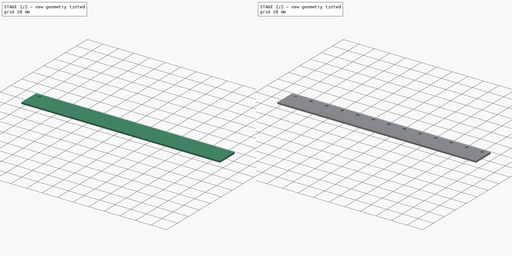
[diagram: build sequence overview — one tinted view per stage of 2, left to right]
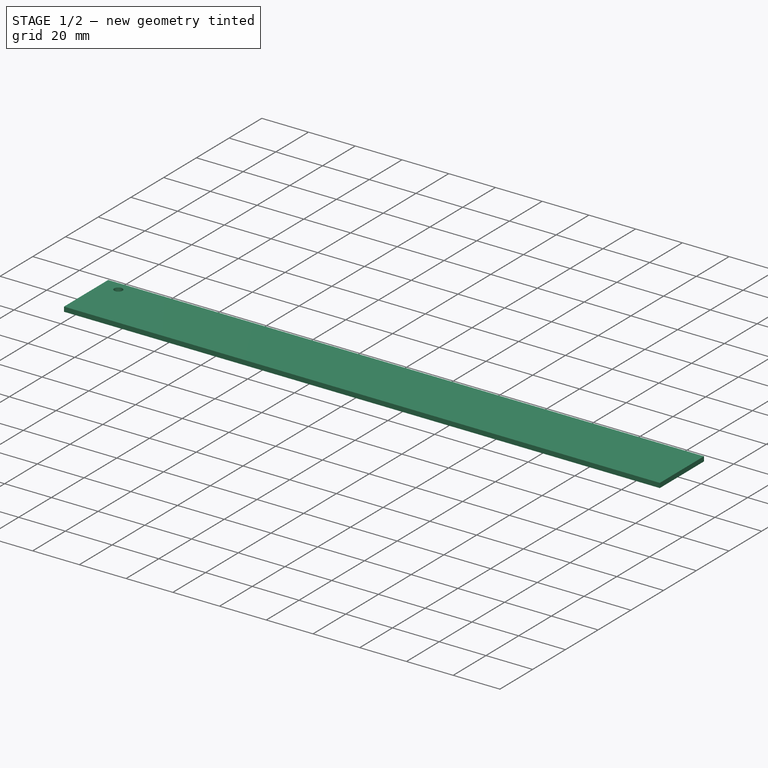
[diagram: stage 1 of 2 — iso view after this stage's code; geometry added in this stage tinted green]
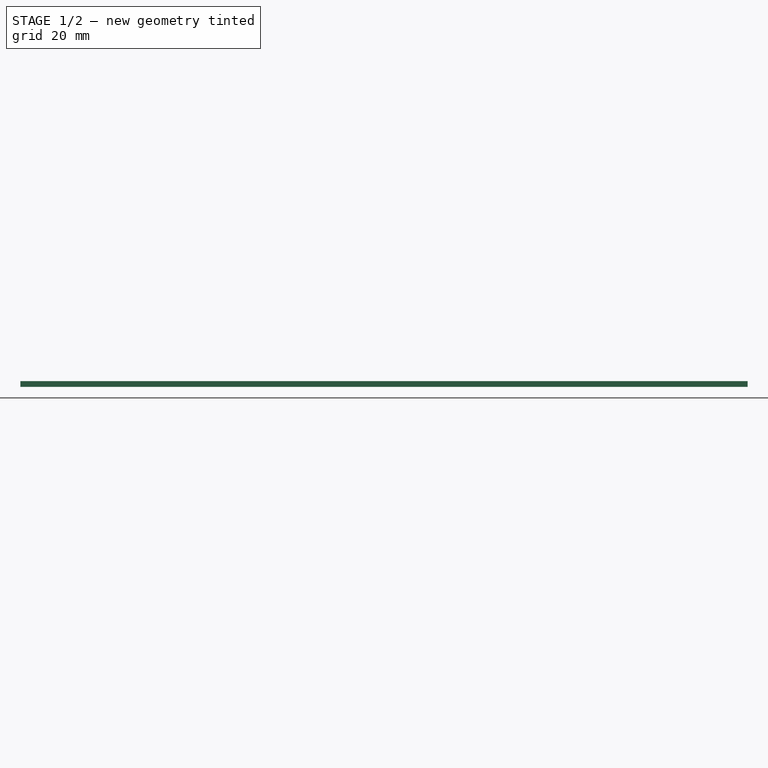
[diagram: stage 1 of 2 — front view after this stage's code; geometry added in this stage tinted green]
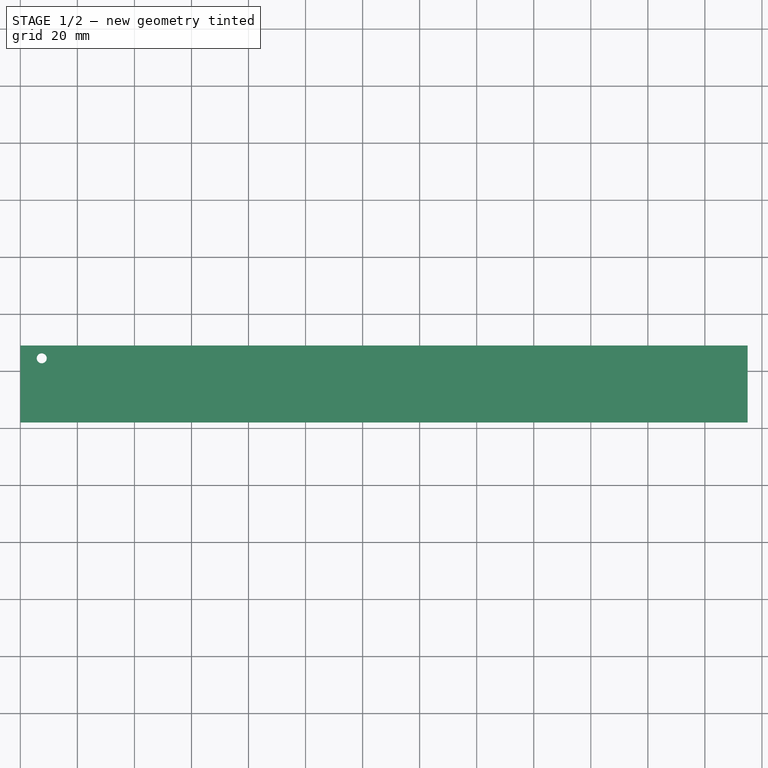
[diagram: stage 1 of 2 — top view after this stage's code; geometry added in this stage tinted green]
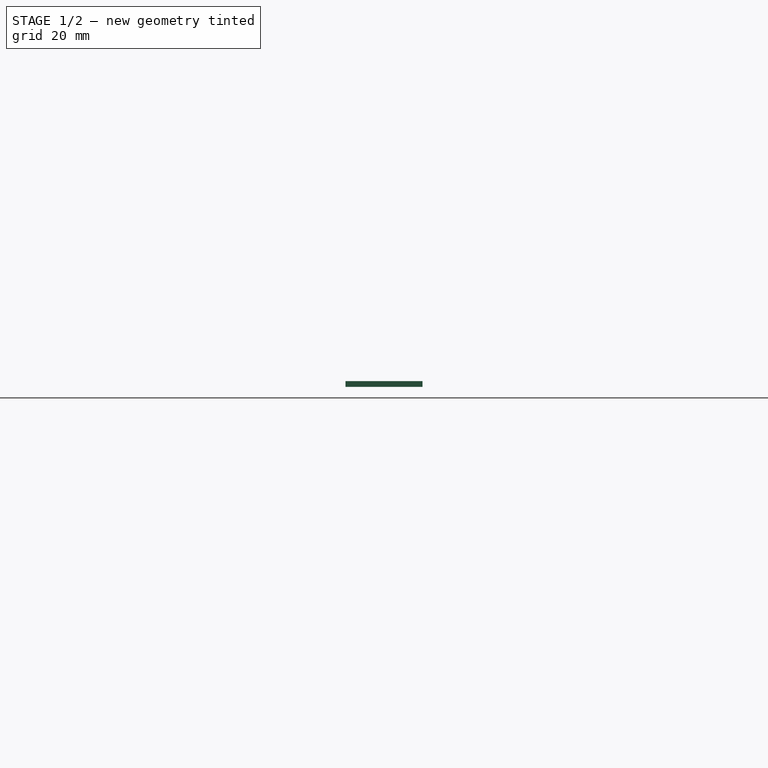
[diagram: stage 1 of 2 — right view after this stage's code; geometry added in this stage tinted green]
FCSTD DOCUMENT  (FreeCAD 0.21R33668 +26 (Git))
Label: PCB_Linear_Potentiometer
License: All rights reserved
LicenseURL: http://en.wikipedia.org/wiki/All_rights_reserved
objects: Sketcher::SketchObject×3, PartDesign::SubShapeBinder×2, PartDesign::Pad×2, PartDesign::Pocket×1, PartDesign::LinearPattern×1, PartDesign::Body×1
note: 13 computed .brp shape members not serialized (recipe doc carries the construction recipe); baked Part::Feature solids carry a one-line shape summary decoded from their .brp
EXTERNAL_REF file=MG/mgn9c_13.FCStd obj=Body
EXTERNAL_REF file=MG/mgn9c_slide.FCStd obj=Body001
EXTERNAL_REF file=MG/Datasheet.FCStd obj=Spreadsheet
EXTERNAL_REF file=NormalConnector.FCStd obj=Sketch
EXTERNAL_REF file=Base.FCStd obj=Sketch001
EXTERNAL_REF file=Base.FCStd obj=Sketch

FEATURE [PartDesign::SubShapeBinder] Binder  label="Rail"
  BindCopyOnChange = 0
  BindMode = 0
  ClaimChildren = false
  Context = -> Body [Binder.]
  Fuse = false
  MakeFace = true
  OffsetFill = false
  OffsetIntersection = false
  OffsetJoinType = 0
  OffsetOpenResult = false
  PartialLoad = false
  Relative = true
  Support = -> [<external MG/mgn9c_13.FCStd>#Body]
  _Version = 2
FEATURE [PartDesign::SubShapeBinder] Binder001  label="Slide"
  BindCopyOnChange = 0
  BindMode = 0
  ClaimChildren = false
  Context = -> Body [Binder001.]
  Fuse = false
  MakeFace = true
  OffsetFill = false
  OffsetIntersection = false
  OffsetJoinType = 0
  OffsetOpenResult = false
  PartialLoad = false
  Placement = pos=(0,-5.5,0) rot=(0,0,1;0rad)
  Relative = true
  Support = -> [<external MG/mgn9c_slide.FCStd>#Body001]
  _Version = 2
FEATURE [Sketcher::SketchObject] Sketch
  ExternalGeometry = -> [Binder]
  FullyConstrained = true
  MapMode = 5
  Support = -> [XY_Plane]
  expr: Constraints[21] = <<Datasheet>>#<<mgn9c>>.Dim_W
  expr: Constraints[22] = NormalConnector#Sketch.Constraints.PCB_Edge_Distance_From_Slide_Side
  sketch-geometry (11):
    g0: LineSegment StartX=0 StartY=9 StartZ=0 EndX=255 EndY=9 EndZ=0
    g1: LineSegment StartX=255 StartY=9 StartZ=0 EndX=255 EndY=-17.9944 EndZ=0
    g2: LineSegment StartX=255 StartY=-17.9944 StartZ=0 EndX=0 EndY=-17.9944 EndZ=0
    g3: LineSegment StartX=0 StartY=-17.9944 StartZ=0 EndX=0 EndY=9 EndZ=0
    g4: LineSegment StartX=7.5 StartY=4.5 StartZ=0 EndX=27.5 EndY=4.5 EndZ=0
    g5: LineSegment StartX=7.5 StartY=14.5 StartZ=0 EndX=27.5 EndY=14.5 EndZ=0
    g6: LineSegment StartX=27.5 StartY=14.5 StartZ=0 EndX=27.5 EndY=-5.5 EndZ=0
    g7: LineSegment StartX=27.5 StartY=-5.5 StartZ=0 EndX=7.5 EndY=-5.5 EndZ=0
    g8: LineSegment StartX=7.5 StartY=-5.5 StartZ=0 EndX=7.5 EndY=14.5 EndZ=0
    g9: Circle CenterX=7.5 CenterY=4.5 CenterZ=0 NormalX=0 NormalY=0 NormalZ=1 AngleXU=0 Radius=1.75
    g10: GeomPoint X=9.25 Y=4.5 Z=0
  constraints (29):
    c: Coincident(g0,g1)
    c: Coincident(g1,g2)
    c: Coincident(g2,g3)
    c: Coincident(g3,g0)
    c: Horizontal(g2)
    c: Vertical(g1)
    c: Vertical(g3)
    c: Coincident(g0,g-3)
    c: Coincident(g0,g-4)
    c: Coincident(g4,g-5)
    c: Coincident(g4,g-6)
    c: Coincident(g5,g6)
    c: Coincident(g6,g7)
    c: Coincident(g7,g8)
    c: Coincident(g8,g5)
    c: Horizontal(g5)
    c: Horizontal(g7)
    c: Vertical(g6)
    c: PointOnObject(g4,g6)
    c: PointOnObject(g4,g8)
    c: Symmetric(g5,g7,g4)
    c: DistanceY(g8,g8) = 20
    c: DistanceY(g2,g7) = 12.4944
    c: Coincident(g9,g4)
    c: PointOnObject(g10,g4)
    c: PointOnObject(g10,g-5)
    c: PointOnObject(g10,g9)
    c: DistanceX(g0,g0) = 255  'Length'
    c: DistanceY(g1,g1) = 26.9944
FEATURE [PartDesign::Pad] Pad
  Direction = (0,0,1)
  Length = 2
  Length2 = 10
  Profile = -> Sketch
  ReferenceAxis = -> Sketch [N_Axis]
  Type = 0
  expr: Length = <<Base>>#<<Sketch001>>.Constraints.PCB_Thickness
FEATURE [Sketcher::SketchObject] Sketch001
  ExternalGeometry = -> [Pad]
  FullyConstrained = true
  MapMode = 5
  Placement = pos=(0,0,2) rot=(0,0,1;0rad)
  Support = -> [Pad]
  sketch-geometry (2):
    g0: Circle CenterX=7.5 CenterY=4.5 CenterZ=0 NormalX=0 NormalY=0 NormalZ=1 AngleXU=0 Radius=1.75
    g1: GeomPoint X=9.25 Y=4.5 Z=0
  constraints (4):
    c: PointOnObject(g1,g0)
    c: PointOnObject(g1,g-3)
    c: Coincident(g0,g-3)
    c: DistanceY(g1,g0) = 0
FEATURE [PartDesign::Pocket] Pocket
  BaseFeature = -> Pad
  Direction = (0,0,-1)
  Length = 5
  Length2 = 5
  Profile = -> Sketch001
  ReferenceAxis = -> Sketch001 [N_Axis]
  Type = 1
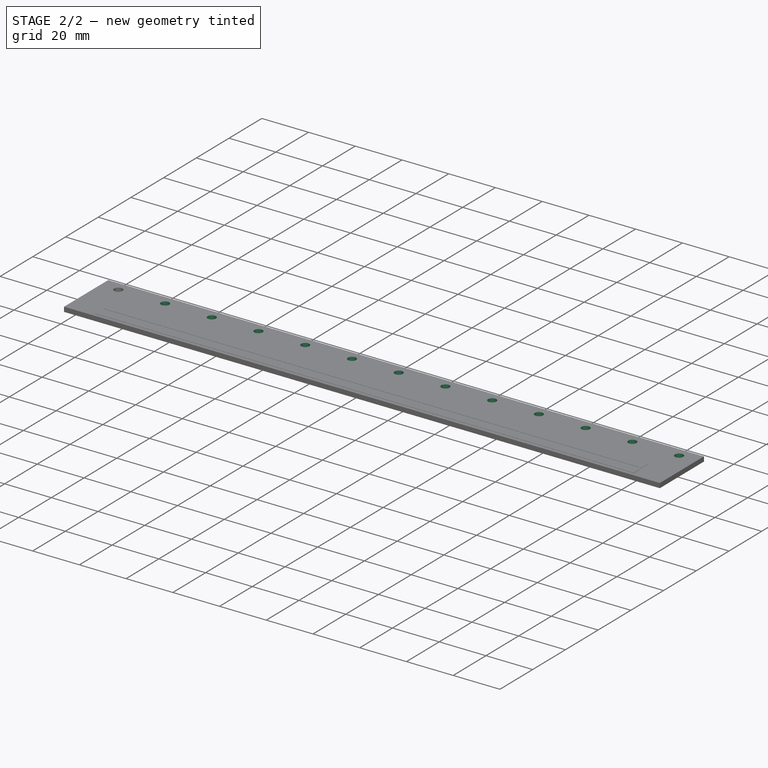
[diagram: stage 2 of 2 — iso view after this stage's code; geometry added in this stage tinted green]
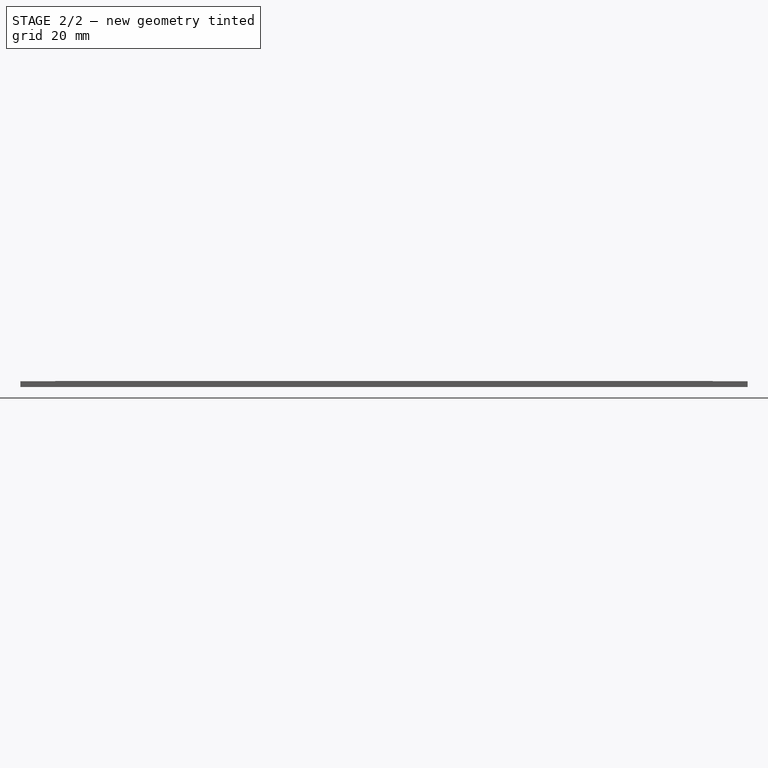
[diagram: stage 2 of 2 — front view after this stage's code; geometry added in this stage tinted green]
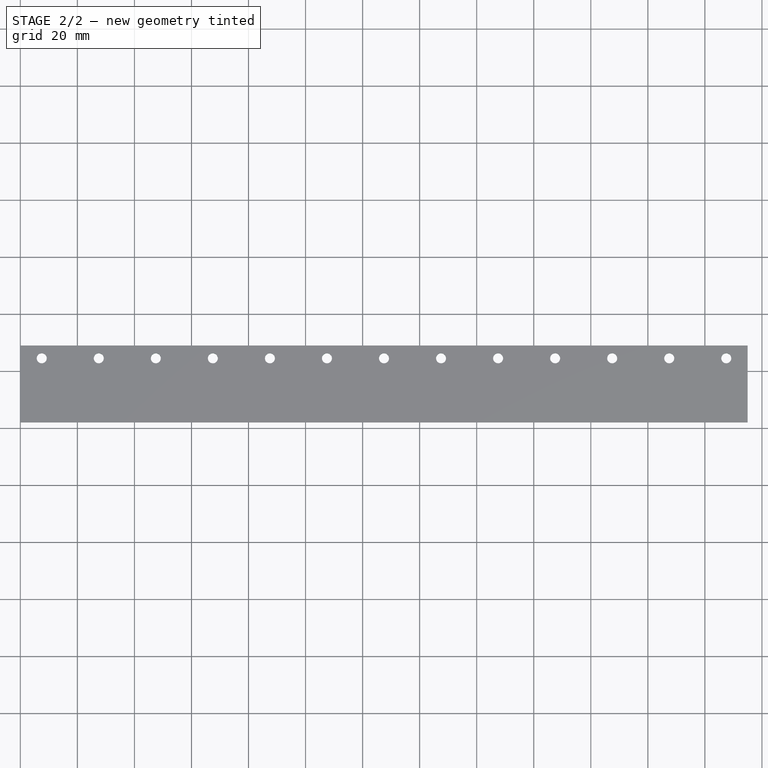
[diagram: stage 2 of 2 — top view after this stage's code; geometry added in this stage tinted green]
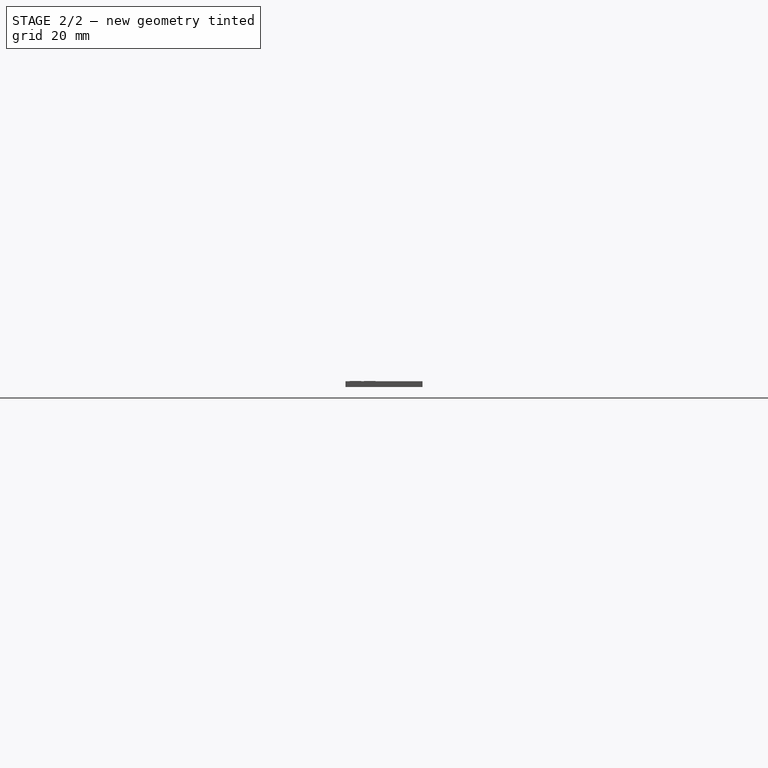
[diagram: stage 2 of 2 — right view after this stage's code; geometry added in this stage tinted green]
FEATURE [PartDesign::LinearPattern] LinearPattern
  BaseFeature = -> Pocket
  Direction = -> Sketch001 [H_Axis]
  Length = 240
  Occurrences = 13
  Originals = -> [Pocket]
  expr: Length = <<Sketch>>.Constraints.Length - <<Datasheet>>#<<mgn9c>>.Dim_E * 2
FEATURE [Sketcher::SketchObject] Sketch002
  ExternalGeometry = -> [LinearPattern]
  FullyConstrained = true
  MapMode = 5
  Placement = pos=(0,0,2) rot=(0,0,1;0rad)
  Support = -> [LinearPattern]
  expr: Constraints[18] = <<Datasheet>>#<<mgn9c>>.Dim_W / 2
  expr: Constraints[21] = NormalConnector#Sketch.Constraints.Connector_Close_Distance
  expr: Constraints[22] = NormalConnector#Sketch.Constraints.Connector_Far_Distance
  expr: Constraints[24] = .Constraints.Resistor_Width
  expr: Constraints[26] = <<Base>>#<<Sketch>>.Constraints.RailOverlap
  sketch-geometry (15):
    g0: LineSegment StartX=12.25 StartY=-7.4986 StartZ=0 EndX=242.75 EndY=-7.4986 EndZ=0
    g1: LineSegment StartX=242.75 StartY=-7.4986 StartZ=0 EndX=242.75 EndY=-11.4986 EndZ=0
    g2: LineSegment StartX=242.75 StartY=-11.4986 StartZ=0 EndX=12.25 EndY=-11.4986 EndZ=0
    g3: LineSegment StartX=12.25 StartY=-11.4986 StartZ=0 EndX=12.25 EndY=-7.4986 EndZ=0
    g4: LineSegment StartX=12.25 StartY=-12.4958 StartZ=0 EndX=242.75 EndY=-12.4958 EndZ=0
    g5: LineSegment StartX=242.75 StartY=-12.4958 StartZ=0 EndX=242.75 EndY=-16.4958 EndZ=0
    g6: LineSegment StartX=242.75 StartY=-16.4958 StartZ=0 EndX=12.25 EndY=-16.4958 EndZ=0
    g7: LineSegment StartX=12.25 StartY=-16.4958 StartZ=0 EndX=12.25 EndY=-12.4958 EndZ=0
    g8: GeomPoint X=12.25 Y=-9.4986 Z=0
    g9: GeomPoint X=12.25 Y=-14.4958 Z=0
    g10: GeomPoint X=0 Y=4.5 Z=0
    g11: GeomPoint X=0 Y=-5.5 Z=0
    g12: GeomPoint X=12.25 Y=9 Z=0
    g13: GeomPoint X=242.75 Y=9 Z=0
    g14: GeomPoint X=127.5 Y=9 Z=0
  constraints (33):
    c: Coincident(g0,g1)
    c: Coincident(g1,g2)
    c: Coincident(g2,g3)
    c: Coincident(g3,g0)
    c: Horizontal(g0)
    c: Horizontal(g2)
    c: Vertical(g1)
    c: Vertical(g3)
    c: Coincident(g4,g5)
    c: Coincident(g5,g6)
    c: Coincident(g6,g7)
    c: Coincident(g7,g4)
    c: Horizontal(g4)
    c: Horizontal(g6)
    c: Vertical(g5)
    c: Vertical(g7)
    c: Symmetric(g-4,g-1,g10)
    c: PointOnObject(g11,g-4)
    c: DistanceY(g11,g10) = 10
    c: Symmetric(g2,g0,g8)
    c: Symmetric(g4,g6,g9)
    c: DistanceY(g8,g11) = 3.9986
    c: DistanceY(g9,g11) = 8.9958
    c: DistanceY(g3,g3) = 4  'Resistor_Width'
    c: DistanceY(g7,g7) = 4
    c: PointOnObject(g12,g-7)
    c: DistanceX(g-7,g12) = 12.25
    c: Vertical(g8,g9)
    c: Vertical(g12,g8)
    c: Symmetric(g13,g12,g14)
    c: Symmetric(g-7,g-7,g14)
    c: Vertical(g0,g13)
    c: Vertical(g4,g1)
FEATURE [PartDesign::Pad] Pad001
  BaseFeature = -> LinearPattern
  Direction = (0,0,1)
  Length = 0.1
  Length2 = 10
  Profile = -> Sketch002
  ReferenceAxis = -> Sketch002 [N_Axis]
  Type = 0
FEATURE [PartDesign::Body] Body  label="PCB"
  Group = -> [Binder,Binder001,Sketch,Pad,Sketch001,Pocket,LinearPattern,Sketch002,Pad001]
  Origin = -> Origin
  Tip = -> Pad001
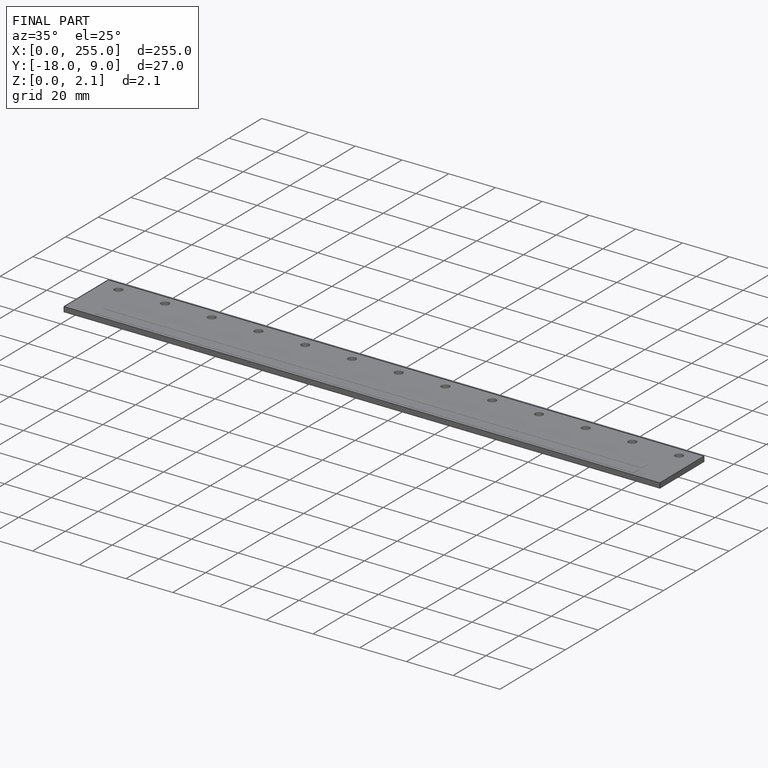
[diagram: finished part — iso view with bounding-box wireframe]
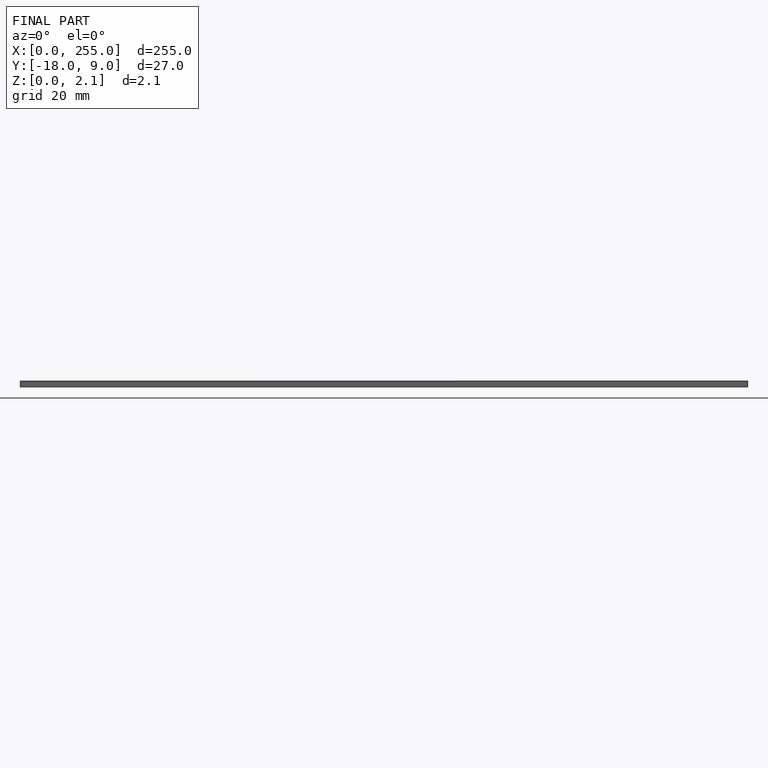
[diagram: finished part — front view with bounding-box wireframe]
